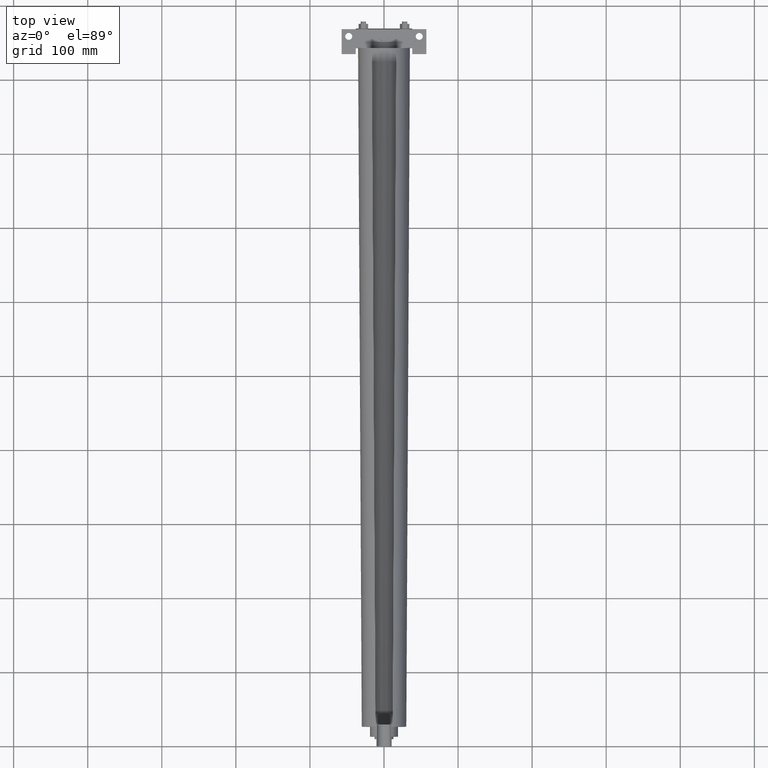
[diagram: clean part render]
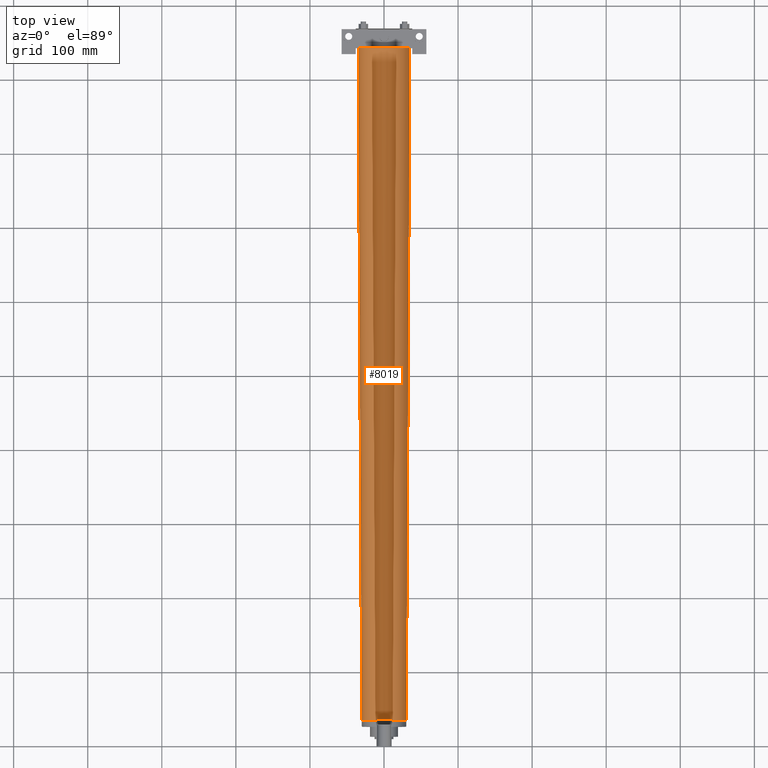
[diagram: same view with one face highlighted and labeled with its STEP entity id]
A machine part, top view. The second image highlights one B-rep face of the part: STEP entity #8019.
In plain terms, the highlighted cylindrical surface (bore or boss wall) has radius 34.925 mm, axis along (0, -1, 0).
Its self-contained STEP definition (entity closure, byte-faithful):
#451=EDGE_CURVE('',#457,#457,#452,.T.);
#452=CIRCLE('',#453,3.016250000E+001);
#453=AXIS2_PLACEMENT_3D('',#454,#455,#456);
#454=CARTESIAN_POINT('',(0.000000000E+000,3.492500000E+001,0.000000000E+000));
#455=DIRECTION('',(0.0E+000,1.0E+000,0.0E+000));
#456=DIRECTION('',(1.0E+000,0.0E+000,0.0E+000));
#457=VERTEX_POINT('',#458);
#458=CARTESIAN_POINT('',(3.016250000E+001,3.492500000E+001,0.000000000E+000));
#490=FACE_OUTER_BOUND('',#492,.T.);
#491=FACE_BOUND('',#493,.T.);
#492=EDGE_LOOP('',(#494));
#493=EDGE_LOOP('',(#503));
#494=ORIENTED_EDGE('',*,*,#495,.F.);
#495=EDGE_CURVE('',#501,#501,#496,.T.);
#496=CIRCLE('',#497,3.492500000E+001);
#497=AXIS2_PLACEMENT_3D('',#498,#499,#500);
#498=CARTESIAN_POINT('',(0.000000000E+000,9.429750000E+002,0.000000000E+000));
#499=DIRECTION('',(0.0E+000,1.0E+000,0.0E+000));
#500=DIRECTION('',(1.0E+000,0.0E+000,0.0E+000));
#501=VERTEX_POINT('',#502);
#502=CARTESIAN_POINT('',(3.492500000E+001,9.429750000E+002,0.000000000E+000));
#503=ORIENTED_EDGE('',*,*,#451,.T.);
#504=CYLINDRICAL_SURFACE('',#505,3.492500000E+001);
#505=AXIS2_PLACEMENT_3D('',#506,#507,#508);
#506=CARTESIAN_POINT('',(0.000000000E+000,9.429750000E+002,0.000000000E+000));
#507=DIRECTION('',(0.0E+000,-1.0E+000,0.0E+000));
#508=DIRECTION('',(0.0E+000,0.0E+000,-1.0E+000));
#8019=ADVANCED_FACE('',(#490,#491),#504,.T.);